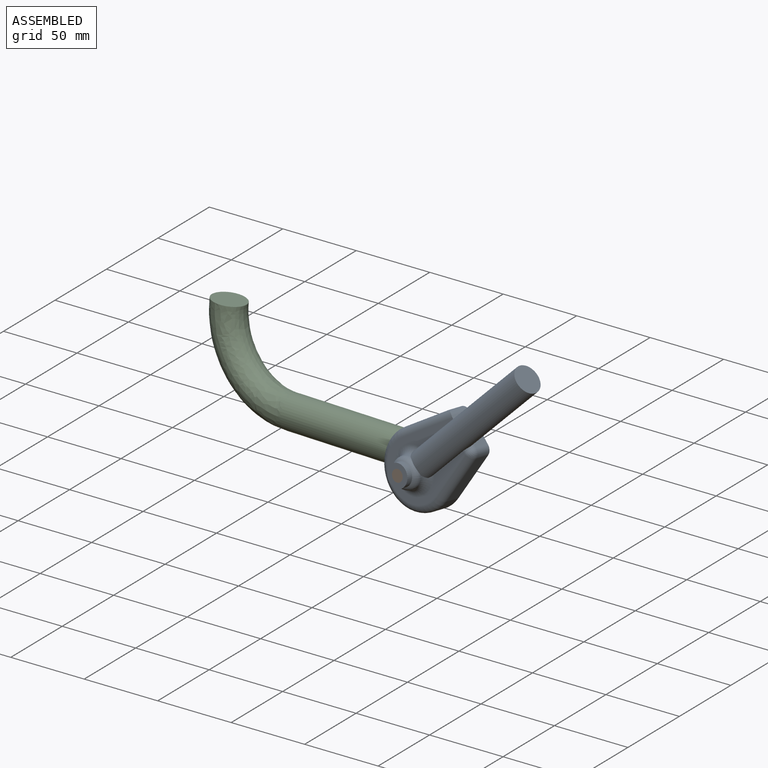
[diagram: assembled view]
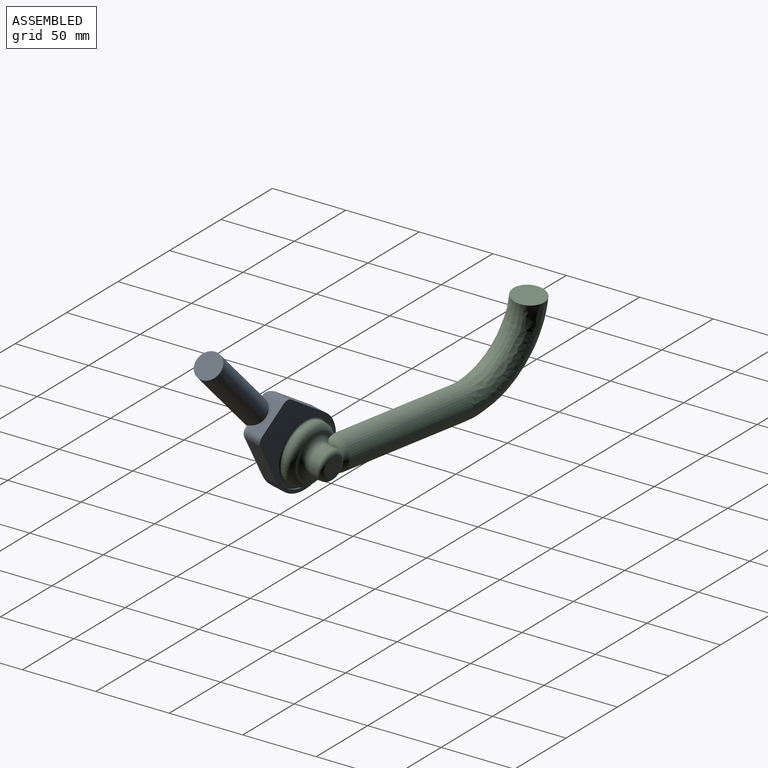
[diagram: assembled view, second angle]
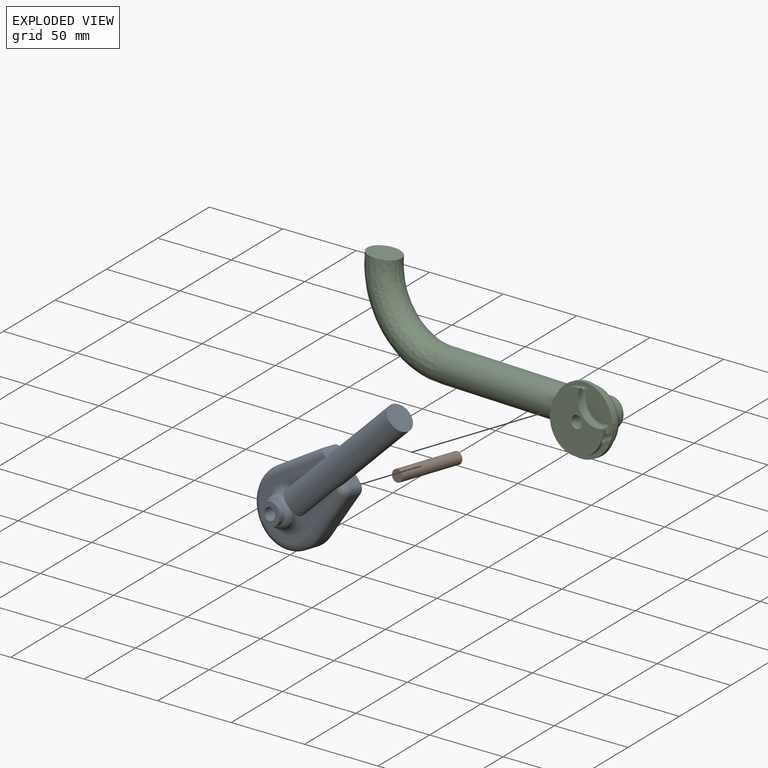
[diagram: exploded view]
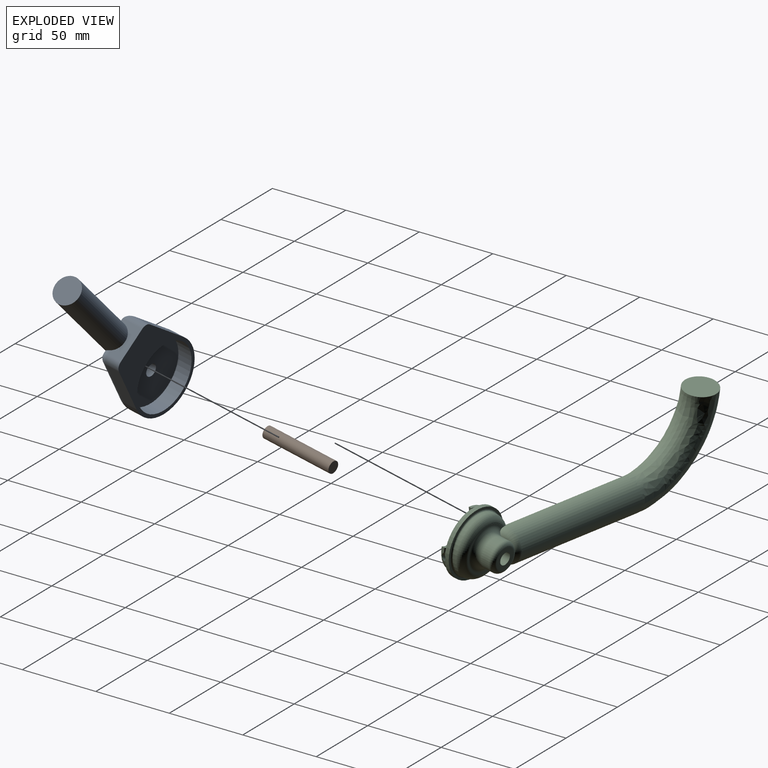
[diagram: exploded view, second angle]
ASSEMBLY  parts=3 mates=2
PART A: 25 faces, bbox 54.1x29x135.1 mm
  f0: cylinder r=4mm len=19mm, axis (0,-1,0), area 477.5mm2, adj f9,f15
  f1: plane 65x40mm, normal (0,1,0), area 727.4mm2, adj f3,f10,f16,f19,f21,f22,f23
  f2: cylinder r=10mm len=20mm, axis (0,-1,0), area 33.5mm2, adj f11,f12,f23,f24
  f3: plane 22.1x15mm, normal (0,0,1), area 174.7mm2, adj f1,f7,f10,f16,f17,f20,f22
  f4: plane 35.38x10mm, normal (-0.97,0,0.23), area 363.6mm2, adj f5,f7,f17,f19
  f5: cylinder r=25mm len=50mm, axis (0,-1,0), area 902.1mm2, adj f4,f6,f7,f21
  f6: plane 35.38x10mm, normal (0.97,0,0.23), area 363.6mm2, adj f5,f7,f20,f22
  f7: plane 70x50mm, normal (0,-1,0), area 1213.9mm2, adj f3,f4,f5,f6,f14,f17,f20
  f8: cylinder r=7.5mm len=15mm, axis (0,-1,0), area 188.5mm2, adj f9,f24
  f9: plane 15x15mm, normal (0,1,0), area 126.4mm2, adj f0,f8
  f10: cylinder r=9mm len=100mm, axis (0,0,-1), area 4523.9mm2, adj f1,f3,f11,f12,f13,f16,f23,f24
  f11: plane 4.6x2.75mm, normal (0,0,-1), area 4.4mm2, adj f2,f10,f23,f24
  f12: plane 4.6x2.75mm, normal (0,0,-1), area 4.4mm2, adj f2,f10,f23,f24
  f13: plane 18x18mm, normal (0,0,1), area 254.5mm2, adj f10
  f14: cylinder r=22.5mm len=45mm, axis (0,-1,0), area 1413.7mm2, adj f7,f15
  f15: plane 45x45mm, normal (0,-1,0), area 1540.2mm2, adj f0,f14
  f16: cylinder r=5mm len=5mm, axis (1,0,0), area 17.5mm2, adj f1,f3,f10,f18
  f17: cylinder r=5mm len=10mm, axis (0,1,0), area 66.9mm2, adj f3,f4,f7,f18
  f18: sphere r=5mm, area 33.4mm2, adj f16,f17,f19
  f19: cylinder r=5mm len=36.53mm, axis (0.23,0,0.97), area 285.6mm2, adj f1,f4,f18,f21
  f20: cylinder r=5mm len=14.86mm, axis (0,-1,0), area 86.1mm2, adj f3,f6,f7,f22
  f21: torus R=20mm, axis (0,-1,0), area 657mm2, adj f1,f5,f19,f22
  f22: cylinder r=5mm len=41.53mm, axis (0.23,0,-0.97), area 310.6mm2, adj f1,f3,f6,f20,f21
  f23: torus R=15mm, axis (0,-1,0), area 448.8mm2, adj f1,f2,f10,f11,f12
  f24: torus R=5mm, axis (0,1,0), area 279.8mm2, adj f2,f8,f10,f11,f12
PART B: 3 faces, bbox 8x50x8 mm
  f0: cylinder r=4mm len=50mm, axis (0,1,0), area 1256.6mm2, adj f1,f2
  f1: plane 8x8mm, normal (0,-1,0), area 50.3mm2, adj f0
  f2: plane 8x8mm, normal (0,1,0), area 50.3mm2, adj f0
PART C: 25 faces, bbox 76.9x44x202.8 mm
  f0: torus R=20mm, axis (0,-1,0), area 113.1mm2, adj f2,f4,f5,f23
  f1: torus R=20mm, axis (0,-1,0), area 18.8mm2, adj f2,f4,f18,f19,f23
  f2: cylinder r=20mm len=40mm, axis (0,1,0), area 181.8mm2, adj f0,f1,f5,f16,f17,f18,f23
  f3: cylinder r=22.5mm len=45mm, axis (0,-1,0), area 422.8mm2, adj f4,f9,f23
  f4: plane 45x45mm, normal (0,-1,0), area 523.1mm2, adj f0,f1,f3,f17,f19,f23
  f5: cylinder r=2mm len=16.18mm, axis (0.46,0,-0.89), area 171.3mm2, adj f0,f2,f17,f24
  f6: cylinder r=10mm len=20mm, axis (0,-1,0), area 303.9mm2, adj f7,f8,f22
  f7: torus R=7mm, axis (0,-1,0), area 246.6mm2, adj f6,f12,f22
  f8: torus R=15mm, axis (0,-1,0), area 449.7mm2, adj f6,f13,f22
  f9: plane 45x45mm, normal (0,1,0), area 205mm2, adj f3,f14
  f10: cylinder r=20mm len=40mm, axis (0,-1,0), area 233.9mm2, adj f13,f14,f15
  f11: cylinder r=4mm len=30mm, axis (0,-1,0), area 754mm2, adj f12,f16
  f12: plane 14x14mm, normal (0,1,0), area 103.7mm2, adj f7,f11
  f13: torus R=15mm, axis (0,-1,0), area 746.4mm2, adj f8,f10,f15,f22
  f14: torus R=21mm, axis (0,-1,0), area 201mm2, adj f9,f10
  f15: cylinder r=11mm len=100mm, axis (0,0,1), area 6770.9mm2, adj f10,f13,f21,f22
  f16: plane 40x40mm, normal (0,-1,0), area 943.3mm2, adj f2,f11,f18
  f17: torus R=20mm, axis (0,-1,0), area 250mm2, adj f2,f4,f5,f18,f19
  f18: cylinder r=15mm len=19.98mm, axis (0,-1,0), area 99mm2, adj f1,f2,f16,f17,f19
  f19: torus R=13mm, axis (0,-1,0), area 95.4mm2, adj f1,f4,f17,f18
  f20: plane 22x21.9mm, normal (1,0,-0.1), area 380.1mm2, adj f21
  f21: bspline ~66.32x65.56mm, area 5799.4mm2, adj f15,f20
  f22: torus R=6mm, axis (0,0,1), area 233.4mm2, adj f6,f7,f8,f13,f15
  f23: cylinder r=2.5mm len=19.18mm, axis (-0.46,0,0.89), area 227.5mm2, adj f0,f1,f2,f3,f4,f24
  f24: plane 5x4.44mm, normal (0.46,0,-0.89), area 7.1mm2, adj f5,f23
PLACE A rot(axis=(0.38,0.03,0.92),170.8deg) t=(-100.52,-132.66,112.86)mm fixed
PLACE B rot(axis=(-0.09,0.97,-0.21),46deg) t=(-97.94,-111.98,110.29)mm
PLACE C rot(axis=(-0.12,-0.99,0),92.5deg) t=(-101.01,-136.6,113.36)mm
MATE fastened B.f0 <-> A.f0  axis (-0.12,-0.98,0.12) through (-104.08,-161.22,116.42)mm
MATE revolute B.f0 <-> C.f11  axis (0.12,0.98,-0.12) through (-97.94,-111.98,110.29)mm
